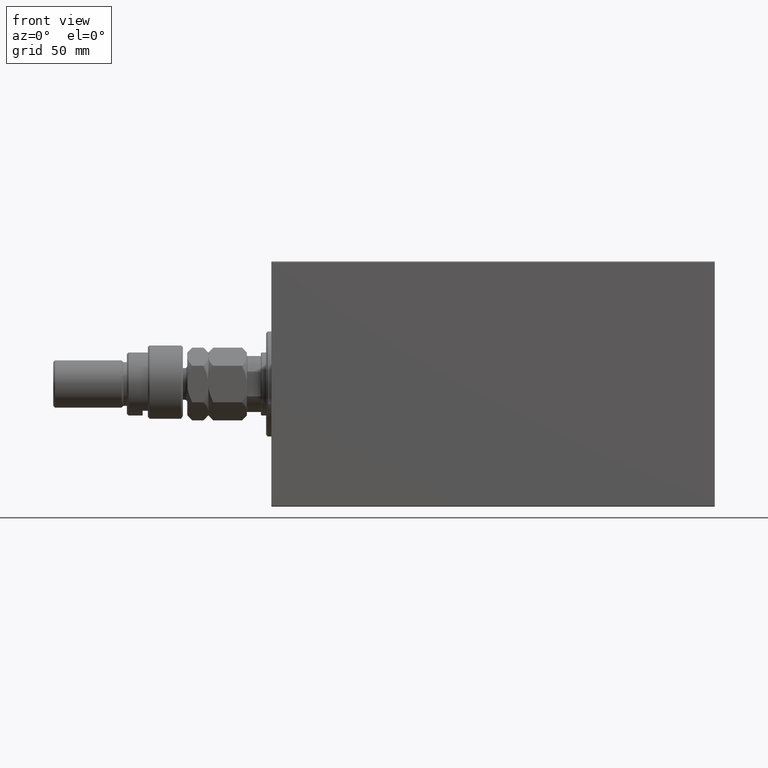
[diagram: clean part render]
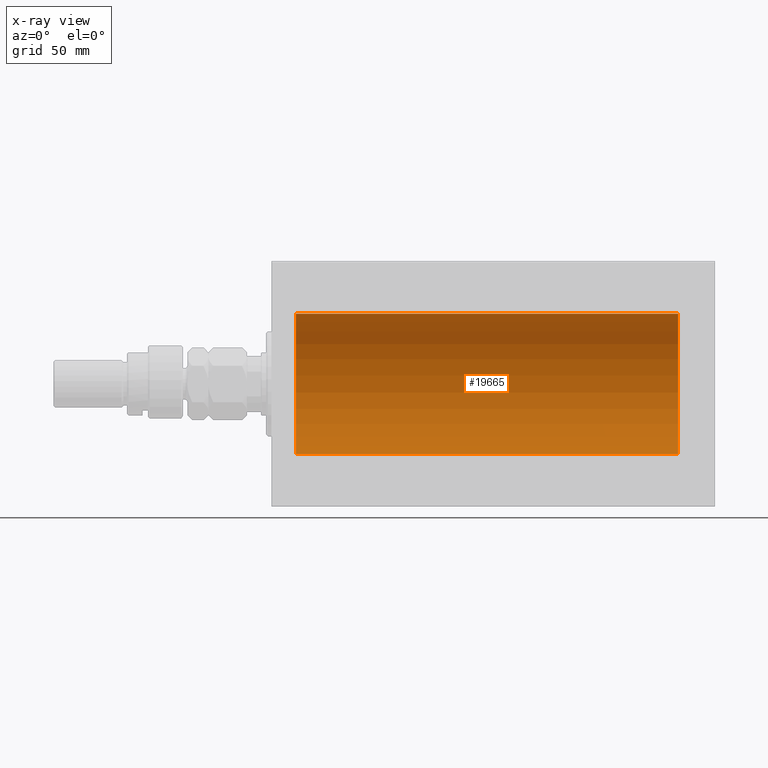
[diagram: x-ray — body ghosted, one internal face saturated and labeled with its STEP entity id]
A machine part, front view, then the same camera in x-ray: the body is ghosted and one INTERNAL B-rep face — a face not visible from any outside direction — is saturated and labeled: STEP entity #19665.
In plain terms, the highlighted cylindrical surface (partial cylindrical patch) has radius 40 mm, axis along (-1, -0, -0).
Its self-contained STEP definition (entity closure, byte-faithful):
#189 = EDGE_LOOP ( 'NONE', ( #41235, #14023, #458, #45016 ) ) ;
#458 = ORIENTED_EDGE ( 'NONE', *, *, #23972, .T. ) ;
#1507 = AXIS2_PLACEMENT_3D ( 'NONE', #43710, #43946, #11622 ) ;
#5087 = VECTOR ( 'NONE', #37612, 1000.000000000000000 ) ;
#9642 = CIRCLE ( 'NONE', #16413, 40.00000000000000000 ) ;
#11622 = DIRECTION ( 'NONE',  ( 0.000000000000000000, 0.000000000000000000, 1.000000000000000000 ) ) ;
#12096 = DIRECTION ( 'NONE',  ( 0.000000000000000000, 0.000000000000000000, 1.000000000000000000 ) ) ;
#12741 = CARTESIAN_POINT ( 'NONE',  ( 13.99999999999998401, 4.898587196589412237E-15, -40.00000000000000000 ) ) ;
#14023 = ORIENTED_EDGE ( 'NONE', *, *, #27704, .F. ) ;
#14281 = VERTEX_POINT ( 'NONE', #40659 ) ;
#15390 = CYLINDRICAL_SURFACE ( 'NONE', #1507, 40.00000000000000000 ) ;
#15911 = LINE ( 'NONE', #41834, #5087 ) ;
#16283 = DIRECTION ( 'NONE',  ( -1.000000000000000000, 0.000000000000000000, 0.000000000000000000 ) ) ;
#16413 = AXIS2_PLACEMENT_3D ( 'NONE', #33535, #16283, #44856 ) ;
#16420 = CIRCLE ( 'NONE', #31498, 40.00000000000000000 ) ;
#17204 = VERTEX_POINT ( 'NONE', #12741 ) ;
#19665 = ADVANCED_FACE ( 'NONE', ( #29306 ), #15390, .F. ) ;
#20899 = CARTESIAN_POINT ( 'NONE',  ( 232.0000000000000000, 0.000000000000000000, 40.00000000000000000 ) ) ;
#20914 = VECTOR ( 'NONE', #37993, 1000.000000000000000 ) ;
#23603 = LINE ( 'NONE', #30910, #20914 ) ;
#23972 = EDGE_CURVE ( 'NONE', #34570, #14281, #15911, .T. ) ;
#27704 = EDGE_CURVE ( 'NONE', #34570, #36748, #16420, .T. ) ;
#29306 = FACE_OUTER_BOUND ( 'NONE', #189, .T. ) ;
#30910 = CARTESIAN_POINT ( 'NONE',  ( 232.0000000000000000, 4.898587196589412237E-15, -40.00000000000000000 ) ) ;
#31498 = AXIS2_PLACEMENT_3D ( 'NONE', #36197, #39503, #12096 ) ;
#32183 = EDGE_CURVE ( 'NONE', #14281, #17204, #9642, .T. ) ;
#32208 = EDGE_CURVE ( 'NONE', #36748, #17204, #23603, .T. ) ;
#33535 = CARTESIAN_POINT ( 'NONE',  ( 13.99999999999998401, 0.000000000000000000, 0.000000000000000000 ) ) ;
#34570 = VERTEX_POINT ( 'NONE', #20899 ) ;
#36197 = CARTESIAN_POINT ( 'NONE',  ( 232.0000000000000000, 0.000000000000000000, 0.000000000000000000 ) ) ;
#36748 = VERTEX_POINT ( 'NONE', #37139 ) ;
#37139 = CARTESIAN_POINT ( 'NONE',  ( 232.0000000000000000, 4.898587196589412237E-15, -40.00000000000000000 ) ) ;
#37612 = DIRECTION ( 'NONE',  ( -1.000000000000000000, -0.000000000000000000, -0.000000000000000000 ) ) ;
#37993 = DIRECTION ( 'NONE',  ( -1.000000000000000000, -0.000000000000000000, -0.000000000000000000 ) ) ;
#39503 = DIRECTION ( 'NONE',  ( -1.000000000000000000, 0.000000000000000000, 0.000000000000000000 ) ) ;
#40659 = CARTESIAN_POINT ( 'NONE',  ( 13.99999999999998401, 0.000000000000000000, 40.00000000000000000 ) ) ;
#41235 = ORIENTED_EDGE ( 'NONE', *, *, #32208, .F. ) ;
#41834 = CARTESIAN_POINT ( 'NONE',  ( 232.0000000000000000, 0.000000000000000000, 40.00000000000000000 ) ) ;
#43710 = CARTESIAN_POINT ( 'NONE',  ( 232.0000000000000000, 0.000000000000000000, 0.000000000000000000 ) ) ;
#43946 = DIRECTION ( 'NONE',  ( -1.000000000000000000, -0.000000000000000000, -0.000000000000000000 ) ) ;
#44856 = DIRECTION ( 'NONE',  ( 0.000000000000000000, 0.000000000000000000, 1.000000000000000000 ) ) ;
#45016 = ORIENTED_EDGE ( 'NONE', *, *, #32183, .T. ) ;